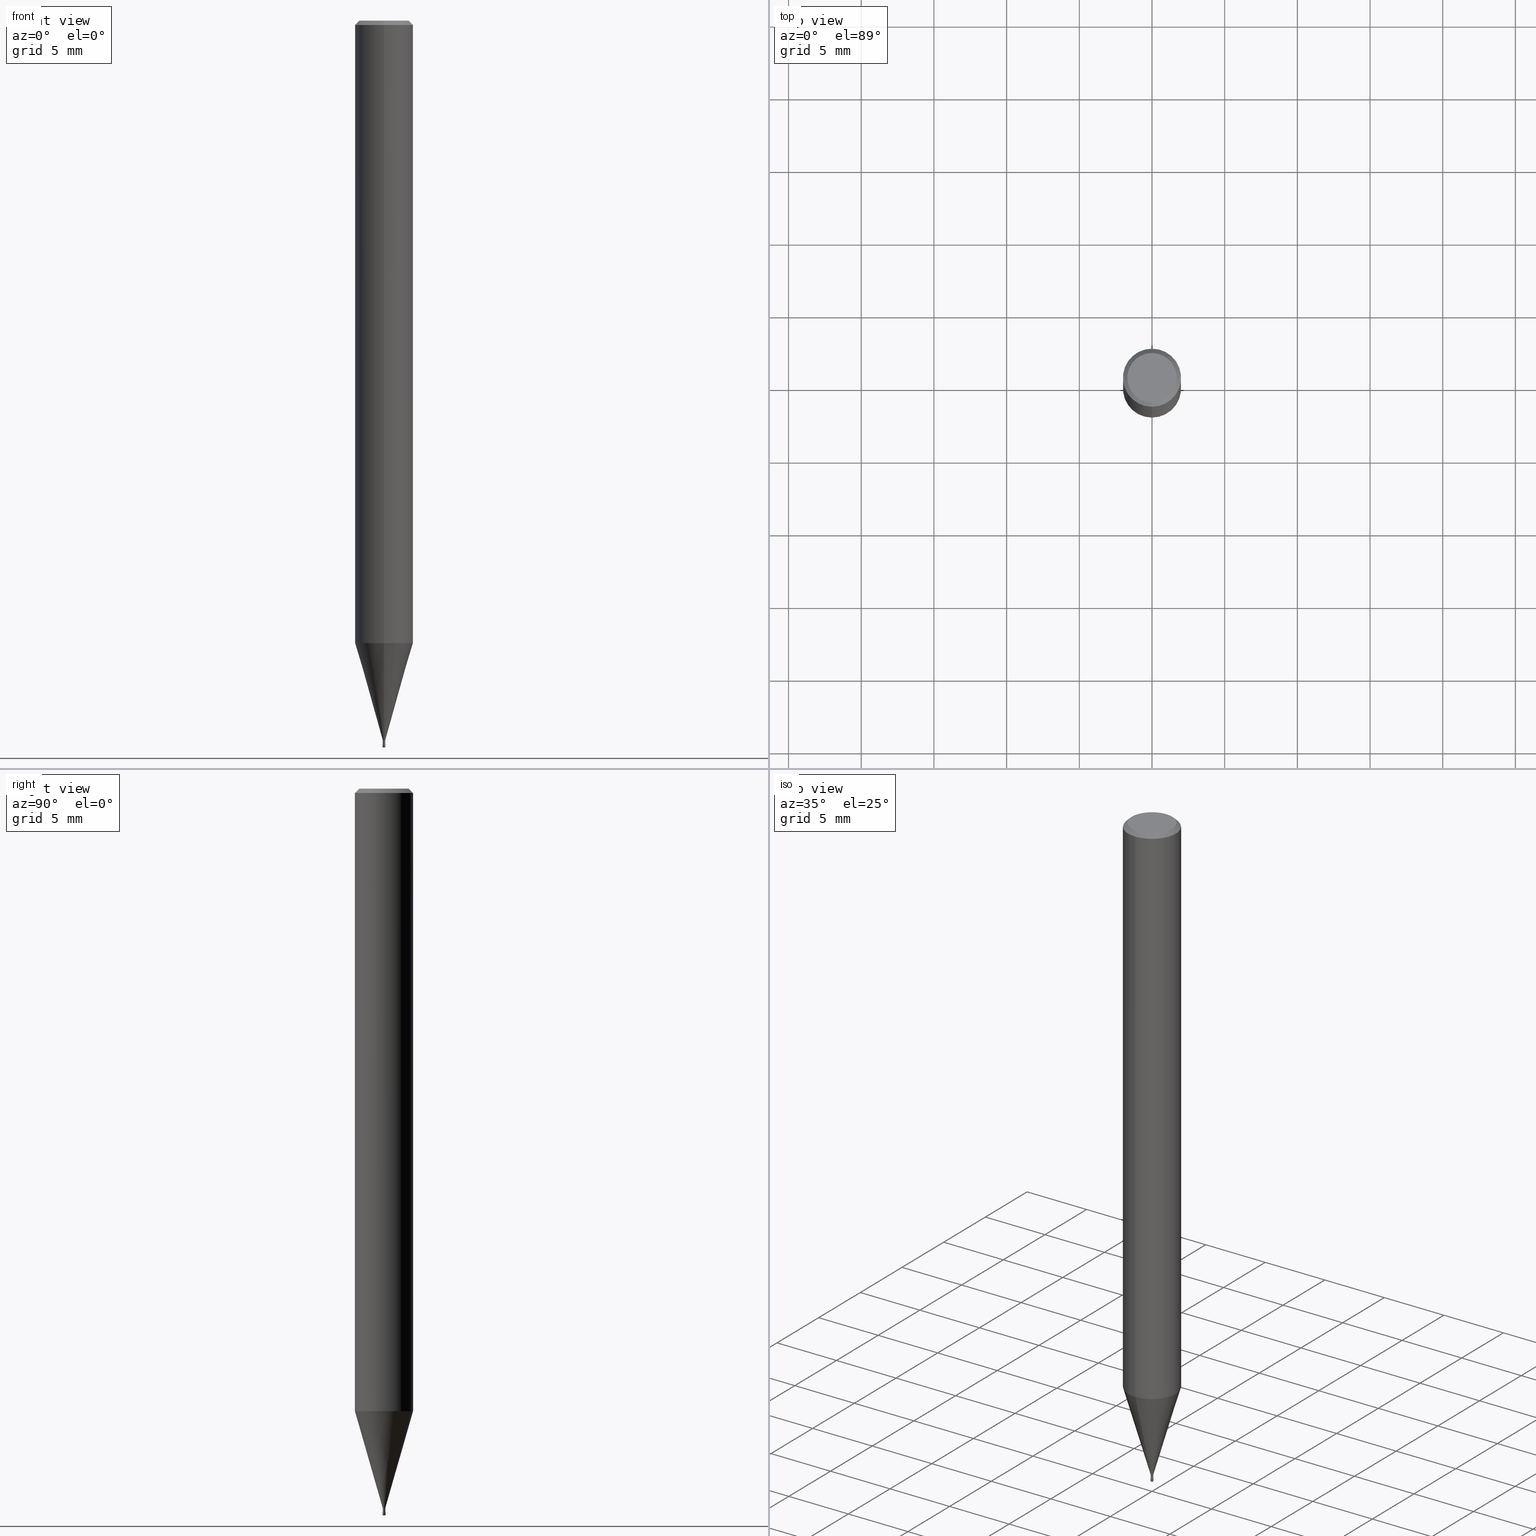
[diagram: canonical four-view strip — front | top / right | iso, engineering-drawing reading convention]
A machine part, canonical four-view strip (front | top / right | iso — engineering-drawing reading convention). The complete STEP part file that produces these views, byte-faithful:
ISO-10303-21;
HEADER;
FILE_DESCRIPTION(('no description'),'unknown implementation level');
FILE_NAME('HLRS2002-005-005E-Huellk.stp','  ',('CIMSOURCE GmbH'),('CADClick - KiM GmbH - www.kimweb.de'),'unknown preprocess','ACIS','unknown authorization');
FILE_SCHEMA(('automotive_design'));
ENDSEC;
DATA;
#1=MECHANICAL_DESIGN_GEOMETRIC_PRESENTATION_REPRESENTATION(' ',(#14,#15,#16,#17,#18,#19,#20,#21,#22,#23,#24,#25,#26,#27,#28,#29,#30,#31,#32,#33,#34,#35,#36,#37,#38,#39,#40,#41,#42,#43,#44,#45,#46,#47,#48,#49,#50,#51,#52,#53,#54,#55,#56,#57,#58,#59,#60,#61,#62,#63,#64,#65,#66,#67,#68,#69,#70,#71,#72,#73,#74,#75,#76,#77,#78,#79,#80),#10);
#2=PRODUCT_DEFINITION_CONTEXT('',#81,'design');
#3=APPLICATION_PROTOCOL_DEFINITION('INTERNATIONAL STANDARD','automotive_design',1994,#81);
#4=PRODUCT_CATEGORY_RELATIONSHIP('NONE','NONE',#82,#83);
#5=SHAPE_DEFINITION_REPRESENTATION(#84,#85);
#6=PRODUCT_DEFINITION_CONTEXT('',#86,'design');
#7=APPLICATION_PROTOCOL_DEFINITION('INTERNATIONAL STANDARD','automotive_design',1994,#86);
#8=PRODUCT_CATEGORY_RELATIONSHIP('NONE','NONE',#87,#88);
#9=SHAPE_DEFINITION_REPRESENTATION(#89,#90);
#10= (GEOMETRIC_REPRESENTATION_CONTEXT(3)GLOBAL_UNCERTAINTY_ASSIGNED_CONTEXT((#93))GLOBAL_UNIT_ASSIGNED_CONTEXT((#95,#96,#97))REPRESENTATION_CONTEXT('NONE','WORKSPACE'));
#14=STYLED_ITEM('',(#99),#100);
#15=STYLED_ITEM('',(#101),#102);
#16=STYLED_ITEM('',(#103),#104);
#17=STYLED_ITEM('',(#105),#106);
#18=STYLED_ITEM('',(#107),#108);
#19=STYLED_ITEM('',(#109),#110);
#20=STYLED_ITEM('',(#111),#112);
#21=STYLED_ITEM('',(#113),#114);
#22=STYLED_ITEM('',(#115),#116);
#23=STYLED_ITEM('',(#117),#118);
#24=STYLED_ITEM('',(#119),#120);
#25=STYLED_ITEM('',(#121),#122);
#26=STYLED_ITEM('',(#123),#124);
#27=STYLED_ITEM('',(#125),#126);
#28=STYLED_ITEM('',(#127),#128);
#29=STYLED_ITEM('',(#129),#130);
#30=STYLED_ITEM('',(#131),#132);
#31=STYLED_ITEM('',(#133),#134);
#32=STYLED_ITEM('',(#135),#136);
#33=STYLED_ITEM('',(#137),#138);
#34=STYLED_ITEM('',(#139),#140);
#35=STYLED_ITEM('',(#141),#142);
#36=STYLED_ITEM('',(#143),#144);
#37=STYLED_ITEM('',(#145),#146);
#38=STYLED_ITEM('',(#147),#148);
#39=STYLED_ITEM('',(#149),#150);
#40=STYLED_ITEM('',(#151),#152);
#41=STYLED_ITEM('',(#153),#154);
#42=STYLED_ITEM('',(#155),#156);
#43=STYLED_ITEM('',(#157),#158);
#44=STYLED_ITEM('',(#159),#160);
#45=STYLED_ITEM('',(#161),#162);
#46=STYLED_ITEM('',(#163),#164);
#47=STYLED_ITEM('',(#165),#166);
#48=STYLED_ITEM('',(#167),#168);
#49=STYLED_ITEM('',(#169),#170);
#50=STYLED_ITEM('',(#171),#172);
#51=STYLED_ITEM('',(#173),#174);
#52=STYLED_ITEM('',(#175),#176);
#53=STYLED_ITEM('',(#177),#178);
#54=STYLED_ITEM('',(#179),#180);
#55=STYLED_ITEM('',(#181),#182);
#56=STYLED_ITEM('',(#183),#184);
#57=STYLED_ITEM('',(#185),#186);
#58=STYLED_ITEM('',(#187),#188);
#59=STYLED_ITEM('',(#189),#190);
#60=STYLED_ITEM('',(#191),#192);
#61=STYLED_ITEM('',(#193),#194);
#62=STYLED_ITEM('',(#195),#196);
#63=STYLED_ITEM('',(#197),#198);
#64=STYLED_ITEM('',(#199),#200);
#65=STYLED_ITEM('',(#201),#202);
#66=STYLED_ITEM('',(#203),#204);
#67=STYLED_ITEM('',(#205),#206);
#68=STYLED_ITEM('',(#207),#208);
#69=STYLED_ITEM('',(#209),#210);
#70=STYLED_ITEM('',(#211),#212);
#71=STYLED_ITEM('',(#213),#214);
#72=STYLED_ITEM('',(#215),#216);
#73=STYLED_ITEM('',(#217),#218);
#74=STYLED_ITEM('',(#219),#220);
#75=STYLED_ITEM('',(#221),#222);
#76=STYLED_ITEM('',(#223),#224);
#77=STYLED_ITEM('',(#225),#226);
#78=STYLED_ITEM('',(#227),#228);
#79=STYLED_ITEM('',(#229),#230);
#80=STYLED_ITEM('',(#231),#232);
#81=APPLICATION_CONTEXT(' ');
#82=PRODUCT_CATEGORY('part','NONE');
#83=PRODUCT_RELATED_PRODUCT_CATEGORY('detail',' ',(#233));
#84=PRODUCT_DEFINITION_SHAPE('NONE','NONE',#234);
#85=ADVANCED_BREP_SHAPE_REPRESENTATION('1',(#202,#235),#10);
#86=APPLICATION_CONTEXT(' ');
#87=PRODUCT_CATEGORY('part','NONE');
#88=PRODUCT_RELATED_PRODUCT_CATEGORY('detail',' ',(#236));
#89=PRODUCT_DEFINITION_SHAPE('NONE','NONE',#237);
#90=ADVANCED_BREP_SHAPE_REPRESENTATION('2',(#174,#238),#10);
#93=UNCERTAINTY_MEASURE_WITH_UNIT(LENGTH_MEASURE(1.0E-006),#95,'','');
#95= (CONVERSION_BASED_UNIT('MILLIMETRE',#241)LENGTH_UNIT()NAMED_UNIT(#244));
#96= (NAMED_UNIT(#246)PLANE_ANGLE_UNIT()SI_UNIT($,.RADIAN.));
#97= (NAMED_UNIT(#246)SOLID_ANGLE_UNIT()SI_UNIT($,.STERADIAN.));
#99=PRESENTATION_STYLE_ASSIGNMENT((#252));
#100=EDGE_CURVE('',#150,#106,#253,.T.);
#101=PRESENTATION_STYLE_ASSIGNMENT((#254));
#102=ADVANCED_FACE('',(#255),#256,.T.);
#103=PRESENTATION_STYLE_ASSIGNMENT((#257));
#104=EDGE_CURVE('',#206,#162,#258,.T.);
#105=PRESENTATION_STYLE_ASSIGNMENT((#259));
#106=VERTEX_POINT('',#260);
#107=PRESENTATION_STYLE_ASSIGNMENT((#261));
#108=EDGE_CURVE('',#160,#150,#262,.T.);
#109=PRESENTATION_STYLE_ASSIGNMENT((#263));
#110=ADVANCED_FACE('',(#264),#265,.T.);
#111=PRESENTATION_STYLE_ASSIGNMENT((#266));
#112=VERTEX_POINT('',#267);
#113=PRESENTATION_STYLE_ASSIGNMENT((#268));
#114=ADVANCED_FACE('',(#269),#270,.T.);
#115=PRESENTATION_STYLE_ASSIGNMENT((#271));
#116=EDGE_CURVE('',#166,#144,#272,.T.);
#117=PRESENTATION_STYLE_ASSIGNMENT((#273));
#118=EDGE_CURVE('',#144,#216,#274,.T.);
#119=PRESENTATION_STYLE_ASSIGNMENT((#275));
#120=ADVANCED_FACE('',(#276),#277,.T.);
#121=PRESENTATION_STYLE_ASSIGNMENT((#278));
#122=EDGE_CURVE('',#144,#166,#279,.T.);
#123=PRESENTATION_STYLE_ASSIGNMENT((#280));
#124=VERTEX_POINT('',#281);
#125=PRESENTATION_STYLE_ASSIGNMENT((#282));
#126=EDGE_CURVE('',#194,#176,#283,.T.);
#127=PRESENTATION_STYLE_ASSIGNMENT((#284));
#128=ADVANCED_FACE('',(#285),#286,.T.);
#129=PRESENTATION_STYLE_ASSIGNMENT((#287));
#130=ADVANCED_FACE('',(#288),#289,.T.);
#131=PRESENTATION_STYLE_ASSIGNMENT((#290));
#132=EDGE_CURVE('',#184,#124,#291,.T.);
#133=PRESENTATION_STYLE_ASSIGNMENT((#292));
#134=EDGE_CURVE('',#112,#204,#293,.T.);
#135=PRESENTATION_STYLE_ASSIGNMENT((#294));
#136=EDGE_CURVE('',#216,#162,#295,.T.);
#137=PRESENTATION_STYLE_ASSIGNMENT((#296));
#138=ADVANCED_FACE('',(#297),#298,.T.);
#139=PRESENTATION_STYLE_ASSIGNMENT((#299));
#140=EDGE_CURVE('',#218,#160,#300,.T.);
#141=PRESENTATION_STYLE_ASSIGNMENT((#301));
#142=EDGE_CURVE('',#124,#184,#302,.T.);
#143=PRESENTATION_STYLE_ASSIGNMENT((#303));
#144=VERTEX_POINT('',#304);
#145=PRESENTATION_STYLE_ASSIGNMENT((#305));
#146=EDGE_CURVE('',#218,#112,#306,.T.);
#147=PRESENTATION_STYLE_ASSIGNMENT((#307));
#148=ADVANCED_FACE('',(#308,#309),#310,.T.);
#149=PRESENTATION_STYLE_ASSIGNMENT((#311));
#150=VERTEX_POINT('',#312);
#151=PRESENTATION_STYLE_ASSIGNMENT((#313));
#152=ADVANCED_FACE('',(#314),#315,.T.);
#153=PRESENTATION_STYLE_ASSIGNMENT((#316));
#154=EDGE_CURVE('',#214,#190,#317,.T.);
#155=PRESENTATION_STYLE_ASSIGNMENT((#318));
#156=EDGE_CURVE('',#168,#216,#319,.T.);
#157=PRESENTATION_STYLE_ASSIGNMENT((#320));
#158=ADVANCED_FACE('',(#321),#322,.T.);
#159=PRESENTATION_STYLE_ASSIGNMENT((#323));
#160=VERTEX_POINT('',#324);
#161=PRESENTATION_STYLE_ASSIGNMENT((#325));
#162=VERTEX_POINT('',#326);
#163=PRESENTATION_STYLE_ASSIGNMENT((#327));
#164=EDGE_CURVE('',#218,#106,#328,.T.);
#165=PRESENTATION_STYLE_ASSIGNMENT((#329));
#166=VERTEX_POINT('',#330);
#167=PRESENTATION_STYLE_ASSIGNMENT((#331));
#168=VERTEX_POINT('',#332);
#169=PRESENTATION_STYLE_ASSIGNMENT((#333));
#170=EDGE_CURVE('',#150,#160,#334,.T.);
#171=PRESENTATION_STYLE_ASSIGNMENT((#335));
#172=EDGE_CURVE('',#204,#112,#336,.T.);
#173=PRESENTATION_STYLE_ASSIGNMENT((#337));
#174=MANIFOLD_SOLID_BREP('2',#338);
#175=PRESENTATION_STYLE_ASSIGNMENT((#339));
#176=VERTEX_POINT('',#340);
#177=PRESENTATION_STYLE_ASSIGNMENT((#341));
#178=ADVANCED_FACE('',(#342),#343,.T.);
#179=PRESENTATION_STYLE_ASSIGNMENT((#344));
#180=EDGE_CURVE('',#124,#176,#345,.T.);
#181=PRESENTATION_STYLE_ASSIGNMENT((#346));
#182=ADVANCED_FACE('',(#347),#348,.T.);
#183=PRESENTATION_STYLE_ASSIGNMENT((#349));
#184=VERTEX_POINT('',#350);
#185=PRESENTATION_STYLE_ASSIGNMENT((#351));
#186=EDGE_CURVE('',#162,#206,#352,.T.);
#187=PRESENTATION_STYLE_ASSIGNMENT((#353));
#188=EDGE_CURVE('',#206,#168,#354,.T.);
#189=PRESENTATION_STYLE_ASSIGNMENT((#355));
#190=VERTEX_POINT('',#356);
#191=PRESENTATION_STYLE_ASSIGNMENT((#357));
#192=ADVANCED_FACE('',(#358),#359,.T.);
#193=PRESENTATION_STYLE_ASSIGNMENT((#360));
#194=VERTEX_POINT('',#361);
#195=PRESENTATION_STYLE_ASSIGNMENT((#362));
#196=EDGE_CURVE('',#106,#218,#363,.T.);
#197=PRESENTATION_STYLE_ASSIGNMENT((#364));
#198=EDGE_CURVE('',#190,#214,#365,.T.);
#199=PRESENTATION_STYLE_ASSIGNMENT((#366));
#200=ADVANCED_FACE('',(#367),#368,.T.);
#201=PRESENTATION_STYLE_ASSIGNMENT((#369));
#202=MANIFOLD_SOLID_BREP('1',#370);
#203=PRESENTATION_STYLE_ASSIGNMENT((#371));
#204=VERTEX_POINT('',#372);
#205=PRESENTATION_STYLE_ASSIGNMENT((#373));
#206=VERTEX_POINT('',#374);
#207=PRESENTATION_STYLE_ASSIGNMENT((#375));
#208=ADVANCED_FACE('',(#376),#377,.T.);
#209=PRESENTATION_STYLE_ASSIGNMENT((#378));
#210=EDGE_CURVE('',#216,#168,#379,.T.);
#211=PRESENTATION_STYLE_ASSIGNMENT((#380));
#212=ADVANCED_FACE('',(#381),#382,.T.);
#213=PRESENTATION_STYLE_ASSIGNMENT((#383));
#214=VERTEX_POINT('',#384);
#215=PRESENTATION_STYLE_ASSIGNMENT((#385));
#216=VERTEX_POINT('',#386);
#217=PRESENTATION_STYLE_ASSIGNMENT((#387));
#218=VERTEX_POINT('',#388);
#219=PRESENTATION_STYLE_ASSIGNMENT((#389));
#220=EDGE_CURVE('',#184,#214,#390,.T.);
#221=PRESENTATION_STYLE_ASSIGNMENT((#391));
#222=EDGE_CURVE('',#176,#194,#392,.T.);
#223=PRESENTATION_STYLE_ASSIGNMENT((#393));
#224=EDGE_CURVE('',#204,#106,#394,.T.);
#225=PRESENTATION_STYLE_ASSIGNMENT((#395));
#226=EDGE_CURVE('',#190,#124,#396,.T.);
#227=PRESENTATION_STYLE_ASSIGNMENT((#397));
#228=EDGE_CURVE('',#194,#184,#398,.T.);
#229=PRESENTATION_STYLE_ASSIGNMENT((#399));
#230=ADVANCED_FACE('',(#400),#401,.T.);
#231=PRESENTATION_STYLE_ASSIGNMENT((#402));
#232=EDGE_CURVE('',#168,#166,#403,.T.);
#233=PRODUCT('1','1','PART-1-DESC',(#404));
#234=PRODUCT_DEFINITION('NONE','NONE',#405,#2);
#235=AXIS2_PLACEMENT_3D('',#406,#407,#408);
#236=PRODUCT('2','2','PART-2-DESC',(#409));
#237=PRODUCT_DEFINITION('NONE','NONE',#410,#6);
#238=AXIS2_PLACEMENT_3D('',#411,#412,#413);
#241=LENGTH_MEASURE_WITH_UNIT(LENGTH_MEASURE(1.0),#414);
#244=DIMENSIONAL_EXPONENTS(1.0,0.0,0.0,0.0,0.0,0.0,0.0);
#246=DIMENSIONAL_EXPONENTS(0.0,0.0,0.0,0.0,0.0,0.0,0.0);
#252=CURVE_STYLE('',#415,POSITIVE_LENGTH_MEASURE(1.0E-006),#416);
#253=LINE('',#417,#418);
#254=SURFACE_STYLE_USAGE(.BOTH.,#419);
#255=FACE_OUTER_BOUND('',#420,.T.);
#256=PLANE('',#421);
#257=CURVE_STYLE('',#422,POSITIVE_LENGTH_MEASURE(1.0E-006),#423);
#258=CIRCLE('',#424,2.0);
#259=POINT_STYLE(' ',#425,POSITIVE_LENGTH_MEASURE(1.0E-006),#426);
#260=CARTESIAN_POINT('',(0.0,0.1,-49.95));
#261=CURVE_STYLE('',#427,POSITIVE_LENGTH_MEASURE(1.0E-006),#428);
#262=CIRCLE('',#429,0.0999);
#263=SURFACE_STYLE_USAGE(.BOTH.,#430);
#264=FACE_OUTER_BOUND('',#431,.T.);
#265=CONICAL_SURFACE('',#432,0.09995,0.00066666656790128);
#266=POINT_STYLE(' ',#433,POSITIVE_LENGTH_MEASURE(1.0E-006),#434);
#267=CARTESIAN_POINT('',(6.12303176911189E-018,-0.05,-50.0));
#268=SURFACE_STYLE_USAGE(.BOTH.,#435);
#269=FACE_OUTER_BOUND('',#436,.T.);
#270=TOROIDAL_SURFACE('',#437,0.0499999999999999,0.0500000000000001);
#271=CURVE_STYLE('',#438,POSITIVE_LENGTH_MEASURE(1.0E-006),#439);
#272=CIRCLE('',#440,1.7);
#273=CURVE_STYLE('',#441,POSITIVE_LENGTH_MEASURE(1.0E-006),#442);
#274=LINE('',#443,#444);
#275=SURFACE_STYLE_USAGE(.BOTH.,#445);
#276=FACE_OUTER_BOUND('',#446,.T.);
#277=PLANE('',#447);
#278=CURVE_STYLE('',#448,POSITIVE_LENGTH_MEASURE(1.0E-006),#449);
#279=CIRCLE('',#450,1.7);
#280=POINT_STYLE(' ',#451,POSITIVE_LENGTH_MEASURE(1.0E-006),#452);
#281=CARTESIAN_POINT('',(1.04030309757211E-017,-0.08495,-49.5));
#282=CURVE_STYLE('',#453,POSITIVE_LENGTH_MEASURE(1.0E-006),#454);
#283=CIRCLE('',#455,1.99995);
#284=SURFACE_STYLE_USAGE(.BOTH.,#456);
#285=FACE_OUTER_BOUND('',#457,.T.);
#286=PLANE('',#458);
#287=SURFACE_STYLE_USAGE(.BOTH.,#459);
#288=FACE_OUTER_BOUND('',#460,.T.);
#289=CYLINDRICAL_SURFACE('',#461,0.08495);
#290=CURVE_STYLE('',#462,POSITIVE_LENGTH_MEASURE(1.0E-006),#463);
#291=CIRCLE('',#464,0.08495);
#292=CURVE_STYLE('',#465,POSITIVE_LENGTH_MEASURE(1.0E-006),#466);
#293=CIRCLE('',#467,0.05);
#294=CURVE_STYLE('',#468,POSITIVE_LENGTH_MEASURE(1.0E-006),#469);
#295=LINE('',#470,#471);
#296=SURFACE_STYLE_USAGE(.BOTH.,#472);
#297=FACE_OUTER_BOUND('',#473,.T.);
#298=TOROIDAL_SURFACE('',#474,0.0499999999999999,0.0500000000000001);
#299=CURVE_STYLE('',#475,POSITIVE_LENGTH_MEASURE(1.0E-006),#476);
#300=LINE('',#477,#478);
#301=CURVE_STYLE('',#479,POSITIVE_LENGTH_MEASURE(1.0E-006),#480);
#302=CIRCLE('',#481,0.08495);
#303=POINT_STYLE(' ',#482,POSITIVE_LENGTH_MEASURE(1.0E-006),#483);
#304=CARTESIAN_POINT('',(0.0,1.7,0.0));
#305=CURVE_STYLE('',#484,POSITIVE_LENGTH_MEASURE(1.0E-006),#485);
#306=CIRCLE('',#486,0.0500000000000001);
#307=SURFACE_STYLE_USAGE(.BOTH.,#487);
#308=FACE_OUTER_BOUND('',#488,.T.);
#309=FACE_BOUND('',#489,.T.);
#310=PLANE('',#490);
#311=POINT_STYLE(' ',#491,POSITIVE_LENGTH_MEASURE(1.0E-006),#492);
#312=CARTESIAN_POINT('',(0.0,0.0999,-49.8));
#313=SURFACE_STYLE_USAGE(.BOTH.,#493);
#314=FACE_OUTER_BOUND('',#494,.T.);
#315=CONICAL_SURFACE('',#495,1.04245,0.279268497676986);
#316=CURVE_STYLE('',#496,POSITIVE_LENGTH_MEASURE(1.0E-006),#497);
#317=CIRCLE('',#498,0.08495);
#318=CURVE_STYLE('',#499,POSITIVE_LENGTH_MEASURE(1.0E-006),#500);
#319=CIRCLE('',#501,2.0);
#320=SURFACE_STYLE_USAGE(.BOTH.,#502);
#321=FACE_OUTER_BOUND('',#503,.T.);
#322=CONICAL_SURFACE('',#504,0.09995,0.00066666656790128);
#323=POINT_STYLE(' ',#505,POSITIVE_LENGTH_MEASURE(1.0E-006),#506);
#324=CARTESIAN_POINT('',(1.22338174746855E-017,-0.0999,-49.8));
#325=POINT_STYLE(' ',#507,POSITIVE_LENGTH_MEASURE(1.0E-006),#508);
#326=CARTESIAN_POINT('',(0.0,2.0,-42.822));
#327=CURVE_STYLE('',#509,POSITIVE_LENGTH_MEASURE(1.0E-006),#510);
#328=CIRCLE('',#511,0.1);
#329=POINT_STYLE(' ',#512,POSITIVE_LENGTH_MEASURE(1.0E-006),#513);
#330=CARTESIAN_POINT('',(2.08183080149804E-016,-1.7,0.0));
#331=POINT_STYLE(' ',#514,POSITIVE_LENGTH_MEASURE(1.0E-006),#515);
#332=CARTESIAN_POINT('',(2.44921270764475E-016,-2.0,-0.299999999999997));
#333=CURVE_STYLE('',#516,POSITIVE_LENGTH_MEASURE(1.0E-006),#517);
#334=CIRCLE('',#518,0.0999);
#335=CURVE_STYLE('',#519,POSITIVE_LENGTH_MEASURE(1.0E-006),#520);
#336=CIRCLE('',#521,0.05);
#337=SURFACE_STYLE_USAGE(.BOTH.,#522);
#338=CLOSED_SHELL('',(#114,#158,#128,#110,#138,#120));
#339=POINT_STYLE(' ',#523,POSITIVE_LENGTH_MEASURE(1.0E-006),#524);
#340=CARTESIAN_POINT('',(2.44915147732706E-016,-1.99995,-42.822));
#341=SURFACE_STYLE_USAGE(.BOTH.,#525);
#342=FACE_OUTER_BOUND('',#526,.T.);
#343=CYLINDRICAL_SURFACE('',#527,0.08495);
#344=CURVE_STYLE('',#528,POSITIVE_LENGTH_MEASURE(1.0E-006),#529);
#345=LINE('',#530,#531);
#346=SURFACE_STYLE_USAGE(.BOTH.,#532);
#347=FACE_OUTER_BOUND('',#533,.T.);
#348=CONICAL_SURFACE('',#534,1.85,0.785398163397453);
#349=POINT_STYLE(' ',#535,POSITIVE_LENGTH_MEASURE(1.0E-006),#536);
#350=CARTESIAN_POINT('',(0.0,0.08495,-49.5));
#351=CURVE_STYLE('',#537,POSITIVE_LENGTH_MEASURE(1.0E-006),#538);
#352=CIRCLE('',#539,2.0);
#353=CURVE_STYLE('',#540,POSITIVE_LENGTH_MEASURE(1.0E-006),#541);
#354=LINE('',#542,#543);
#355=POINT_STYLE(' ',#544,POSITIVE_LENGTH_MEASURE(1.0E-006),#545);
#356=CARTESIAN_POINT('',(1.04030309757211E-017,-0.08495,-49.8));
#357=SURFACE_STYLE_USAGE(.BOTH.,#546);
#358=FACE_OUTER_BOUND('',#547,.T.);
#359=CYLINDRICAL_SURFACE('',#548,2.0);
#360=POINT_STYLE(' ',#549,POSITIVE_LENGTH_MEASURE(1.0E-006),#550);
#361=CARTESIAN_POINT('',(0.0,1.99995,-42.822));
#362=CURVE_STYLE('',#551,POSITIVE_LENGTH_MEASURE(1.0E-006),#552);
#363=CIRCLE('',#553,0.1);
#364=CURVE_STYLE('',#554,POSITIVE_LENGTH_MEASURE(1.0E-006),#555);
#365=CIRCLE('',#556,0.08495);
#366=SURFACE_STYLE_USAGE(.BOTH.,#557);
#367=FACE_OUTER_BOUND('',#558,.T.);
#368=CONICAL_SURFACE('',#559,1.85,0.785398163397453);
#369=SURFACE_STYLE_USAGE(.BOTH.,#560);
#370=CLOSED_SHELL('',(#178,#208,#212,#200,#148,#230,#182,#192,#152,#130,#102));
#371=POINT_STYLE(' ',#561,POSITIVE_LENGTH_MEASURE(1.0E-006),#562);
#372=CARTESIAN_POINT('',(0.0,0.05,-50.0));
#373=POINT_STYLE(' ',#563,POSITIVE_LENGTH_MEASURE(1.0E-006),#564);
#374=CARTESIAN_POINT('',(2.44921270764475E-016,-2.0,-42.822));
#375=SURFACE_STYLE_USAGE(.BOTH.,#565);
#376=FACE_OUTER_BOUND('',#566,.T.);
#377=CONICAL_SURFACE('',#567,1.04245,0.279268497676986);
#378=CURVE_STYLE('',#568,POSITIVE_LENGTH_MEASURE(1.0E-006),#569);
#379=CIRCLE('',#570,2.0);
#380=SURFACE_STYLE_USAGE(.BOTH.,#571);
#381=FACE_OUTER_BOUND('',#572,.T.);
#382=CYLINDRICAL_SURFACE('',#573,2.0);
#383=POINT_STYLE(' ',#574,POSITIVE_LENGTH_MEASURE(1.0E-006),#575);
#384=CARTESIAN_POINT('',(0.0,0.08495,-49.8));
#385=POINT_STYLE(' ',#576,POSITIVE_LENGTH_MEASURE(1.0E-006),#577);
#386=CARTESIAN_POINT('',(0.0,2.0,-0.299999999999997));
#387=POINT_STYLE(' ',#578,POSITIVE_LENGTH_MEASURE(1.0E-006),#579);
#388=CARTESIAN_POINT('',(1.22460635382238E-017,-0.1,-49.95));
#389=CURVE_STYLE('',#580,POSITIVE_LENGTH_MEASURE(1.0E-006),#581);
#390=LINE('',#582,#583);
#391=CURVE_STYLE('',#584,POSITIVE_LENGTH_MEASURE(1.0E-006),#585);
#392=CIRCLE('',#586,1.99995);
#393=CURVE_STYLE('',#587,POSITIVE_LENGTH_MEASURE(1.0E-006),#588);
#394=CIRCLE('',#589,0.0500000000000001);
#395=CURVE_STYLE('',#590,POSITIVE_LENGTH_MEASURE(1.0E-006),#591);
#396=LINE('',#592,#593);
#397=CURVE_STYLE('',#594,POSITIVE_LENGTH_MEASURE(1.0E-006),#595);
#398=LINE('',#596,#597);
#399=SURFACE_STYLE_USAGE(.BOTH.,#598);
#400=FACE_OUTER_BOUND('',#599,.T.);
#401=PLANE('',#600);
#402=CURVE_STYLE('',#601,POSITIVE_LENGTH_MEASURE(1.0E-006),#602);
#403=LINE('',#603,#604);
#404=PRODUCT_CONTEXT('',#81,'mechanical');
#405=PRODUCT_DEFINITION_FORMATION_WITH_SPECIFIED_SOURCE(' ','NONE',#233,.NOT_KNOWN.);
#406=CARTESIAN_POINT('',(0.0,0.0,0.0));
#407=DIRECTION('',(0.0,0.0,1.0));
#408=DIRECTION('',(1.0,0.0,0.0));
#409=PRODUCT_CONTEXT('',#86,'mechanical');
#410=PRODUCT_DEFINITION_FORMATION_WITH_SPECIFIED_SOURCE(' ','NONE',#236,.NOT_KNOWN.);
#411=CARTESIAN_POINT('',(0.0,0.0,0.0));
#412=DIRECTION('',(0.0,0.0,1.0));
#413=DIRECTION('',(1.0,0.0,0.0));
#414= (NAMED_UNIT(#244)LENGTH_UNIT()SI_UNIT(.MILLI.,.METRE.));
#415=DRAUGHTING_PRE_DEFINED_CURVE_FONT('continuous');
#416=COLOUR_RGB('',0.800000011920929,0.800000011920929,0.800000011920929);
#417=CARTESIAN_POINT('',(-1.22399405064547E-017,0.09995,-49.875));
#418=VECTOR('',#606,1.0);
#419=SURFACE_SIDE_STYLE('',(#607));
#420=EDGE_LOOP('',(#608,#609));
#421=AXIS2_PLACEMENT_3D('',#610,#611,#612);
#422=DRAUGHTING_PRE_DEFINED_CURVE_FONT('continuous');
#423=COLOUR_RGB('',0.498039215803146,0.498039215803146,0.498039215803146);
#424=AXIS2_PLACEMENT_3D('',#613,#614,#615);
#425=PRE_DEFINED_MARKER('');
#426=COLOUR_RGB('',0.800000011920929,0.800000011920929,0.800000011920929);
#427=DRAUGHTING_PRE_DEFINED_CURVE_FONT('continuous');
#428=COLOUR_RGB('',0.800000011920929,0.800000011920929,0.800000011920929);
#429=AXIS2_PLACEMENT_3D('',#616,#617,#618);
#430=SURFACE_SIDE_STYLE('',(#619));
#431=EDGE_LOOP('',(#620,#621,#622,#623));
#432=AXIS2_PLACEMENT_3D('',#624,#625,#626);
#433=PRE_DEFINED_MARKER('');
#434=COLOUR_RGB('',0.800000011920929,0.800000011920929,0.800000011920929);
#435=SURFACE_SIDE_STYLE('',(#627));
#436=EDGE_LOOP('',(#628,#629,#630,#631));
#437=AXIS2_PLACEMENT_3D('',#632,#633,#634);
#438=DRAUGHTING_PRE_DEFINED_CURVE_FONT('continuous');
#439=COLOUR_RGB('',0.498039215803146,0.498039215803146,0.498039215803146);
#440=AXIS2_PLACEMENT_3D('',#635,#636,#637);
#441=DRAUGHTING_PRE_DEFINED_CURVE_FONT('continuous');
#442=COLOUR_RGB('',0.498039215803146,0.498039215803146,0.498039215803146);
#443=CARTESIAN_POINT('',(-2.2655217545714E-016,1.85,-0.149999999999999));
#444=VECTOR('',#638,1.0);
#445=SURFACE_SIDE_STYLE('',(#639));
#446=EDGE_LOOP('',(#640,#641));
#447=AXIS2_PLACEMENT_3D('',#642,#643,#644);
#448=DRAUGHTING_PRE_DEFINED_CURVE_FONT('continuous');
#449=COLOUR_RGB('',0.498039215803146,0.498039215803146,0.498039215803146);
#450=AXIS2_PLACEMENT_3D('',#645,#646,#647);
#451=PRE_DEFINED_MARKER('');
#452=COLOUR_RGB('',0.498039215803146,0.498039215803146,0.498039215803146);
#453=DRAUGHTING_PRE_DEFINED_CURVE_FONT('continuous');
#454=COLOUR_RGB('',0.498039215803146,0.498039215803146,0.498039215803146);
#455=AXIS2_PLACEMENT_3D('',#648,#649,#650);
#456=SURFACE_SIDE_STYLE('',(#651));
#457=EDGE_LOOP('',(#652,#653));
#458=AXIS2_PLACEMENT_3D('',#654,#655,#656);
#459=SURFACE_SIDE_STYLE('',(#657));
#460=EDGE_LOOP('',(#658,#659,#660,#661));
#461=AXIS2_PLACEMENT_3D('',#662,#663,#664);
#462=DRAUGHTING_PRE_DEFINED_CURVE_FONT('continuous');
#463=COLOUR_RGB('',0.498039215803146,0.498039215803146,0.498039215803146);
#464=AXIS2_PLACEMENT_3D('',#665,#666,#667);
#465=DRAUGHTING_PRE_DEFINED_CURVE_FONT('continuous');
#466=COLOUR_RGB('',0.800000011920929,0.800000011920929,0.800000011920929);
#467=AXIS2_PLACEMENT_3D('',#668,#669,#670);
#468=DRAUGHTING_PRE_DEFINED_CURVE_FONT('continuous');
#469=COLOUR_RGB('',0.498039215803146,0.498039215803146,0.498039215803146);
#470=CARTESIAN_POINT('',(-2.44921270764475E-016,2.0,-21.561));
#471=VECTOR('',#671,1.0);
#472=SURFACE_SIDE_STYLE('',(#672));
#473=EDGE_LOOP('',(#673,#674,#675,#676));
#474=AXIS2_PLACEMENT_3D('',#677,#678,#679);
#475=DRAUGHTING_PRE_DEFINED_CURVE_FONT('continuous');
#476=COLOUR_RGB('',0.800000011920929,0.800000011920929,0.800000011920929);
#477=CARTESIAN_POINT('',(1.22399405064547E-017,-0.09995,-49.875));
#478=VECTOR('',#680,1.0);
#479=DRAUGHTING_PRE_DEFINED_CURVE_FONT('continuous');
#480=COLOUR_RGB('',0.498039215803146,0.498039215803146,0.498039215803146);
#481=AXIS2_PLACEMENT_3D('',#681,#682,#683);
#482=PRE_DEFINED_MARKER('');
#483=COLOUR_RGB('',0.498039215803146,0.498039215803146,0.498039215803146);
#484=DRAUGHTING_PRE_DEFINED_CURVE_FONT('continuous');
#485=COLOUR_RGB('',0.800000011920929,0.800000011920929,0.800000011920929);
#486=AXIS2_PLACEMENT_3D('',#684,#685,#686);
#487=SURFACE_SIDE_STYLE('',(#687));
#488=EDGE_LOOP('',(#688,#689));
#489=EDGE_LOOP('',(#690,#691));
#490=AXIS2_PLACEMENT_3D('',#692,#693,#694);
#491=PRE_DEFINED_MARKER('');
#492=COLOUR_RGB('',0.800000011920929,0.800000011920929,0.800000011920929);
#493=SURFACE_SIDE_STYLE('',(#695));
#494=EDGE_LOOP('',(#696,#697,#698,#699));
#495=AXIS2_PLACEMENT_3D('',#700,#701,#702);
#496=DRAUGHTING_PRE_DEFINED_CURVE_FONT('continuous');
#497=COLOUR_RGB('',0.498039215803146,0.498039215803146,0.498039215803146);
#498=AXIS2_PLACEMENT_3D('',#703,#704,#705);
#499=DRAUGHTING_PRE_DEFINED_CURVE_FONT('continuous');
#500=COLOUR_RGB('',0.498039215803146,0.498039215803146,0.498039215803146);
#501=AXIS2_PLACEMENT_3D('',#706,#707,#708);
#502=SURFACE_SIDE_STYLE('',(#709));
#503=EDGE_LOOP('',(#710,#711,#712,#713));
#504=AXIS2_PLACEMENT_3D('',#714,#715,#716);
#505=PRE_DEFINED_MARKER('');
#506=COLOUR_RGB('',0.800000011920929,0.800000011920929,0.800000011920929);
#507=PRE_DEFINED_MARKER('');
#508=COLOUR_RGB('',0.498039215803146,0.498039215803146,0.498039215803146);
#509=DRAUGHTING_PRE_DEFINED_CURVE_FONT('continuous');
#510=COLOUR_RGB('',0.800000011920929,0.800000011920929,0.800000011920929);
#511=AXIS2_PLACEMENT_3D('',#717,#718,#719);
#512=PRE_DEFINED_MARKER('');
#513=COLOUR_RGB('',0.498039215803146,0.498039215803146,0.498039215803146);
#514=PRE_DEFINED_MARKER('');
#515=COLOUR_RGB('',0.498039215803146,0.498039215803146,0.498039215803146);
#516=DRAUGHTING_PRE_DEFINED_CURVE_FONT('continuous');
#517=COLOUR_RGB('',0.800000011920929,0.800000011920929,0.800000011920929);
#518=AXIS2_PLACEMENT_3D('',#720,#721,#722);
#519=DRAUGHTING_PRE_DEFINED_CURVE_FONT('continuous');
#520=COLOUR_RGB('',0.800000011920929,0.800000011920929,0.800000011920929);
#521=AXIS2_PLACEMENT_3D('',#723,#724,#725);
#522=SURFACE_SIDE_STYLE('',(#726));
#523=PRE_DEFINED_MARKER('');
#524=COLOUR_RGB('',0.498039215803146,0.498039215803146,0.498039215803146);
#525=SURFACE_SIDE_STYLE('',(#727));
#526=EDGE_LOOP('',(#728,#729,#730,#731));
#527=AXIS2_PLACEMENT_3D('',#732,#733,#734);
#528=DRAUGHTING_PRE_DEFINED_CURVE_FONT('continuous');
#529=COLOUR_RGB('',0.498039215803146,0.498039215803146,0.498039215803146);
#530=CARTESIAN_POINT('',(1.27659089354214E-016,-1.04245,-46.161));
#531=VECTOR('',#735,1.0);
#532=SURFACE_SIDE_STYLE('',(#736));
#533=EDGE_LOOP('',(#737,#738,#739,#740));
#534=AXIS2_PLACEMENT_3D('',#741,#742,#743);
#535=PRE_DEFINED_MARKER('');
#536=COLOUR_RGB('',0.498039215803146,0.498039215803146,0.498039215803146);
#537=DRAUGHTING_PRE_DEFINED_CURVE_FONT('continuous');
#538=COLOUR_RGB('',0.498039215803146,0.498039215803146,0.498039215803146);
#539=AXIS2_PLACEMENT_3D('',#744,#745,#746);
#540=DRAUGHTING_PRE_DEFINED_CURVE_FONT('continuous');
#541=COLOUR_RGB('',0.498039215803146,0.498039215803146,0.498039215803146);
#542=CARTESIAN_POINT('',(2.44921270764475E-016,-2.0,-21.561));
#543=VECTOR('',#747,1.0);
#544=PRE_DEFINED_MARKER('');
#545=COLOUR_RGB('',0.498039215803146,0.498039215803146,0.498039215803146);
#546=SURFACE_SIDE_STYLE('',(#748));
#547=EDGE_LOOP('',(#749,#750,#751,#752));
#548=AXIS2_PLACEMENT_3D('',#753,#754,#755);
#549=PRE_DEFINED_MARKER('');
#550=COLOUR_RGB('',0.498039215803146,0.498039215803146,0.498039215803146);
#551=DRAUGHTING_PRE_DEFINED_CURVE_FONT('continuous');
#552=COLOUR_RGB('',0.800000011920929,0.800000011920929,0.800000011920929);
#553=AXIS2_PLACEMENT_3D('',#756,#757,#758);
#554=DRAUGHTING_PRE_DEFINED_CURVE_FONT('continuous');
#555=COLOUR_RGB('',0.498039215803146,0.498039215803146,0.498039215803146);
#556=AXIS2_PLACEMENT_3D('',#759,#760,#761);
#557=SURFACE_SIDE_STYLE('',(#762));
#558=EDGE_LOOP('',(#763,#764,#765,#766));
#559=AXIS2_PLACEMENT_3D('',#767,#768,#769);
#560=SURFACE_SIDE_STYLE('',(#770));
#561=PRE_DEFINED_MARKER('');
#562=COLOUR_RGB('',0.800000011920929,0.800000011920929,0.800000011920929);
#563=PRE_DEFINED_MARKER('');
#564=COLOUR_RGB('',0.498039215803146,0.498039215803146,0.498039215803146);
#565=SURFACE_SIDE_STYLE('',(#771));
#566=EDGE_LOOP('',(#772,#773,#774,#775));
#567=AXIS2_PLACEMENT_3D('',#776,#777,#778);
#568=DRAUGHTING_PRE_DEFINED_CURVE_FONT('continuous');
#569=COLOUR_RGB('',0.498039215803146,0.498039215803146,0.498039215803146);
#570=AXIS2_PLACEMENT_3D('',#779,#780,#781);
#571=SURFACE_SIDE_STYLE('',(#782));
#572=EDGE_LOOP('',(#783,#784,#785,#786));
#573=AXIS2_PLACEMENT_3D('',#787,#788,#789);
#574=PRE_DEFINED_MARKER('');
#575=COLOUR_RGB('',0.498039215803146,0.498039215803146,0.498039215803146);
#576=PRE_DEFINED_MARKER('');
#577=COLOUR_RGB('',0.498039215803146,0.498039215803146,0.498039215803146);
#578=PRE_DEFINED_MARKER('');
#579=COLOUR_RGB('',0.800000011920929,0.800000011920929,0.800000011920929);
#580=DRAUGHTING_PRE_DEFINED_CURVE_FONT('continuous');
#581=COLOUR_RGB('',0.498039215803146,0.498039215803146,0.498039215803146);
#582=CARTESIAN_POINT('',(-1.04030309757211E-017,0.08495,-49.65));
#583=VECTOR('',#790,1.0);
#584=DRAUGHTING_PRE_DEFINED_CURVE_FONT('continuous');
#585=COLOUR_RGB('',0.498039215803146,0.498039215803146,0.498039215803146);
#586=AXIS2_PLACEMENT_3D('',#791,#792,#793);
#587=DRAUGHTING_PRE_DEFINED_CURVE_FONT('continuous');
#588=COLOUR_RGB('',0.800000011920929,0.800000011920929,0.800000011920929);
#589=AXIS2_PLACEMENT_3D('',#794,#795,#796);
#590=DRAUGHTING_PRE_DEFINED_CURVE_FONT('continuous');
#591=COLOUR_RGB('',0.498039215803146,0.498039215803146,0.498039215803146);
#592=CARTESIAN_POINT('',(1.04030309757211E-017,-0.08495,-49.65));
#593=VECTOR('',#797,1.0);
#594=DRAUGHTING_PRE_DEFINED_CURVE_FONT('continuous');
#595=COLOUR_RGB('',0.498039215803146,0.498039215803146,0.498039215803146);
#596=CARTESIAN_POINT('',(-1.27659089354214E-016,1.04245,-46.161));
#597=VECTOR('',#798,1.0);
#598=SURFACE_SIDE_STYLE('',(#799));
#599=EDGE_LOOP('',(#800,#801));
#600=AXIS2_PLACEMENT_3D('',#802,#803,#804);
#601=DRAUGHTING_PRE_DEFINED_CURVE_FONT('continuous');
#602=COLOUR_RGB('',0.498039215803146,0.498039215803146,0.498039215803146);
#603=CARTESIAN_POINT('',(2.2655217545714E-016,-1.85,-0.149999999999999));
#604=VECTOR('',#805,1.0);
#606=DIRECTION('',(-8.16404054458505E-020,0.000666666518518587,-0.999999777777852));
#607=SURFACE_STYLE_FILL_AREA(#806);
#608=ORIENTED_EDGE('',*,*,#154,.T.);
#609=ORIENTED_EDGE('',*,*,#198,.T.);
#610=CARTESIAN_POINT('',(0.0,0.042475,-49.8));
#611=DIRECTION('',(0.0,0.0,-1.0));
#612=DIRECTION('',(0.0,1.0,0.0));
#613=CARTESIAN_POINT('',(0.0,0.0,-42.822));
#614=DIRECTION('',(0.0,0.0,-1.0));
#615=DIRECTION('',(0.0,1.0,0.0));
#616=CARTESIAN_POINT('',(0.0,0.0,-49.8));
#617=DIRECTION('',(0.0,0.0,-1.0));
#618=DIRECTION('',(0.0,1.0,0.0));
#619=SURFACE_STYLE_FILL_AREA(#807);
#620=ORIENTED_EDGE('',*,*,#100,.T.);
#621=ORIENTED_EDGE('',*,*,#164,.F.);
#622=ORIENTED_EDGE('',*,*,#140,.T.);
#623=ORIENTED_EDGE('',*,*,#108,.T.);
#624=CARTESIAN_POINT('',(0.0,0.0,-49.875));
#625=DIRECTION('',(0.0,-0.0,-1.0));
#626=DIRECTION('',(0.0,1.0,0.0));
#627=SURFACE_STYLE_FILL_AREA(#808);
#628=ORIENTED_EDGE('',*,*,#146,.F.);
#629=ORIENTED_EDGE('',*,*,#164,.T.);
#630=ORIENTED_EDGE('',*,*,#224,.F.);
#631=ORIENTED_EDGE('',*,*,#134,.F.);
#632=CARTESIAN_POINT('',(0.0,0.0,-49.95));
#633=DIRECTION('',(0.0,0.0,-1.0));
#634=DIRECTION('',(0.0,-1.0,0.0));
#635=CARTESIAN_POINT('',(0.0,0.0,0.0));
#636=DIRECTION('',(0.0,0.0,-1.0));
#637=DIRECTION('',(0.0,1.0,0.0));
#638=DIRECTION('',(-8.6592745707194E-017,0.707106781186551,-0.707106781186544));
#639=SURFACE_STYLE_FILL_AREA(#809);
#640=ORIENTED_EDGE('',*,*,#172,.T.);
#641=ORIENTED_EDGE('',*,*,#134,.T.);
#642=CARTESIAN_POINT('',(0.0,0.025,-50.0));
#643=DIRECTION('',(0.0,0.0,-1.0));
#644=DIRECTION('',(0.0,1.0,0.0));
#645=CARTESIAN_POINT('',(0.0,0.0,0.0));
#646=DIRECTION('',(0.0,0.0,-1.0));
#647=DIRECTION('',(0.0,1.0,0.0));
#648=CARTESIAN_POINT('',(0.0,0.0,-42.822));
#649=DIRECTION('',(0.0,0.0,-1.0));
#650=DIRECTION('',(0.0,1.0,0.0));
#651=SURFACE_STYLE_FILL_AREA(#810);
#652=ORIENTED_EDGE('',*,*,#170,.F.);
#653=ORIENTED_EDGE('',*,*,#108,.F.);
#654=CARTESIAN_POINT('',(0.0,0.04995,-49.8));
#655=DIRECTION('',(-0.0,0.0,1.0));
#656=DIRECTION('',(0.0,-1.0,0.0));
#657=SURFACE_STYLE_FILL_AREA(#811);
#658=ORIENTED_EDGE('',*,*,#220,.T.);
#659=ORIENTED_EDGE('',*,*,#198,.F.);
#660=ORIENTED_EDGE('',*,*,#226,.T.);
#661=ORIENTED_EDGE('',*,*,#142,.T.);
#662=CARTESIAN_POINT('',(0.0,0.0,-49.65));
#663=DIRECTION('',(-0.0,-0.0,1.0));
#664=DIRECTION('',(0.0,1.0,0.0));
#665=CARTESIAN_POINT('',(0.0,0.0,-49.5));
#666=DIRECTION('',(0.0,0.0,-1.0));
#667=DIRECTION('',(0.0,1.0,0.0));
#668=CARTESIAN_POINT('',(0.0,0.0,-50.0));
#669=DIRECTION('',(0.0,0.0,-1.0));
#670=DIRECTION('',(0.0,1.0,0.0));
#671=DIRECTION('',(0.0,0.0,-1.0));
#672=SURFACE_STYLE_FILL_AREA(#812);
#673=ORIENTED_EDGE('',*,*,#146,.T.);
#674=ORIENTED_EDGE('',*,*,#172,.F.);
#675=ORIENTED_EDGE('',*,*,#224,.T.);
#676=ORIENTED_EDGE('',*,*,#196,.T.);
#677=CARTESIAN_POINT('',(0.0,0.0,-49.95));
#678=DIRECTION('',(0.0,0.0,-1.0));
#679=DIRECTION('',(0.0,-1.0,0.0));
#680=DIRECTION('',(-8.16404054458505E-020,0.000666666518518587,0.999999777777852));
#681=CARTESIAN_POINT('',(0.0,0.0,-49.5));
#682=DIRECTION('',(0.0,0.0,-1.0));
#683=DIRECTION('',(0.0,1.0,0.0));
#684=CARTESIAN_POINT('',(6.12303176911187E-018,-0.0499999999999999,-49.95));
#685=DIRECTION('',(1.0,1.22460635382238E-016,0.0));
#686=DIRECTION('',(1.22460635382238E-016,-1.0,-0.0));
#687=SURFACE_STYLE_FILL_AREA(#813);
#688=ORIENTED_EDGE('',*,*,#186,.T.);
#689=ORIENTED_EDGE('',*,*,#104,.T.);
#690=ORIENTED_EDGE('',*,*,#126,.F.);
#691=ORIENTED_EDGE('',*,*,#222,.F.);
#692=CARTESIAN_POINT('',(0.0,1.0,-42.822));
#693=DIRECTION('',(0.0,0.0,-1.0));
#694=DIRECTION('',(0.0,1.0,0.0));
#695=SURFACE_STYLE_FILL_AREA(#814);
#696=ORIENTED_EDGE('',*,*,#228,.T.);
#697=ORIENTED_EDGE('',*,*,#142,.F.);
#698=ORIENTED_EDGE('',*,*,#180,.T.);
#699=ORIENTED_EDGE('',*,*,#222,.T.);
#700=CARTESIAN_POINT('',(0.0,0.0,-46.161));
#701=DIRECTION('',(-0.0,-0.0,1.0));
#702=DIRECTION('',(0.0,1.0,0.0));
#703=CARTESIAN_POINT('',(0.0,0.0,-49.8));
#704=DIRECTION('',(0.0,0.0,-1.0));
#705=DIRECTION('',(0.0,1.0,0.0));
#706=CARTESIAN_POINT('',(0.0,0.0,-0.299999999999997));
#707=DIRECTION('',(0.0,0.0,-1.0));
#708=DIRECTION('',(0.0,1.0,0.0));
#709=SURFACE_STYLE_FILL_AREA(#815);
#710=ORIENTED_EDGE('',*,*,#100,.F.);
#711=ORIENTED_EDGE('',*,*,#170,.T.);
#712=ORIENTED_EDGE('',*,*,#140,.F.);
#713=ORIENTED_EDGE('',*,*,#196,.F.);
#714=CARTESIAN_POINT('',(0.0,0.0,-49.875));
#715=DIRECTION('',(0.0,-0.0,-1.0));
#716=DIRECTION('',(0.0,1.0,0.0));
#717=CARTESIAN_POINT('',(0.0,0.0,-49.95));
#718=DIRECTION('',(0.0,0.0,-1.0));
#719=DIRECTION('',(0.0,1.0,0.0));
#720=CARTESIAN_POINT('',(0.0,0.0,-49.8));
#721=DIRECTION('',(0.0,0.0,-1.0));
#722=DIRECTION('',(0.0,1.0,0.0));
#723=CARTESIAN_POINT('',(0.0,0.0,-50.0));
#724=DIRECTION('',(0.0,0.0,-1.0));
#725=DIRECTION('',(0.0,1.0,0.0));
#726=SURFACE_STYLE_FILL_AREA(#816);
#727=SURFACE_STYLE_FILL_AREA(#817);
#728=ORIENTED_EDGE('',*,*,#220,.F.);
#729=ORIENTED_EDGE('',*,*,#132,.T.);
#730=ORIENTED_EDGE('',*,*,#226,.F.);
#731=ORIENTED_EDGE('',*,*,#154,.F.);
#732=CARTESIAN_POINT('',(0.0,0.0,-49.65));
#733=DIRECTION('',(-0.0,-0.0,1.0));
#734=DIRECTION('',(0.0,1.0,0.0));
#735=DIRECTION('',(3.37565876916665E-017,-0.275652560402792,0.961257335963365));
#736=SURFACE_STYLE_FILL_AREA(#818);
#737=ORIENTED_EDGE('',*,*,#118,.T.);
#738=ORIENTED_EDGE('',*,*,#156,.F.);
#739=ORIENTED_EDGE('',*,*,#232,.T.);
#740=ORIENTED_EDGE('',*,*,#116,.T.);
#741=CARTESIAN_POINT('',(0.0,0.0,-0.149999999999999));
#742=DIRECTION('',(0.0,-0.0,-1.0));
#743=DIRECTION('',(0.0,1.0,0.0));
#744=CARTESIAN_POINT('',(0.0,0.0,-42.822));
#745=DIRECTION('',(0.0,0.0,-1.0));
#746=DIRECTION('',(0.0,1.0,0.0));
#747=DIRECTION('',(-0.0,-0.0,1.0));
#748=SURFACE_STYLE_FILL_AREA(#819);
#749=ORIENTED_EDGE('',*,*,#136,.T.);
#750=ORIENTED_EDGE('',*,*,#104,.F.);
#751=ORIENTED_EDGE('',*,*,#188,.T.);
#752=ORIENTED_EDGE('',*,*,#156,.T.);
#753=CARTESIAN_POINT('',(0.0,0.0,-21.561));
#754=DIRECTION('',(-0.0,-0.0,1.0));
#755=DIRECTION('',(0.0,1.0,0.0));
#756=CARTESIAN_POINT('',(0.0,0.0,-49.95));
#757=DIRECTION('',(0.0,0.0,-1.0));
#758=DIRECTION('',(0.0,1.0,0.0));
#759=CARTESIAN_POINT('',(0.0,0.0,-49.8));
#760=DIRECTION('',(0.0,0.0,-1.0));
#761=DIRECTION('',(0.0,1.0,0.0));
#762=SURFACE_STYLE_FILL_AREA(#820);
#763=ORIENTED_EDGE('',*,*,#118,.F.);
#764=ORIENTED_EDGE('',*,*,#122,.T.);
#765=ORIENTED_EDGE('',*,*,#232,.F.);
#766=ORIENTED_EDGE('',*,*,#210,.F.);
#767=CARTESIAN_POINT('',(0.0,0.0,-0.149999999999999));
#768=DIRECTION('',(0.0,-0.0,-1.0));
#769=DIRECTION('',(0.0,1.0,0.0));
#770=SURFACE_STYLE_FILL_AREA(#821);
#771=SURFACE_STYLE_FILL_AREA(#822);
#772=ORIENTED_EDGE('',*,*,#228,.F.);
#773=ORIENTED_EDGE('',*,*,#126,.T.);
#774=ORIENTED_EDGE('',*,*,#180,.F.);
#775=ORIENTED_EDGE('',*,*,#132,.F.);
#776=CARTESIAN_POINT('',(0.0,0.0,-46.161));
#777=DIRECTION('',(-0.0,-0.0,1.0));
#778=DIRECTION('',(0.0,1.0,0.0));
#779=CARTESIAN_POINT('',(0.0,0.0,-0.299999999999997));
#780=DIRECTION('',(0.0,0.0,-1.0));
#781=DIRECTION('',(0.0,1.0,0.0));
#782=SURFACE_STYLE_FILL_AREA(#823);
#783=ORIENTED_EDGE('',*,*,#136,.F.);
#784=ORIENTED_EDGE('',*,*,#210,.T.);
#785=ORIENTED_EDGE('',*,*,#188,.F.);
#786=ORIENTED_EDGE('',*,*,#186,.F.);
#787=CARTESIAN_POINT('',(0.0,0.0,-21.561));
#788=DIRECTION('',(-0.0,-0.0,1.0));
#789=DIRECTION('',(0.0,1.0,0.0));
#790=DIRECTION('',(0.0,0.0,-1.0));
#791=CARTESIAN_POINT('',(0.0,0.0,-42.822));
#792=DIRECTION('',(0.0,0.0,-1.0));
#793=DIRECTION('',(0.0,1.0,0.0));
#794=CARTESIAN_POINT('',(-6.12303176911187E-018,0.0499999999999999,-49.95));
#795=DIRECTION('',(1.0,1.22460635382238E-016,0.0));
#796=DIRECTION('',(-1.22460635382238E-016,1.0,0.0));
#797=DIRECTION('',(-0.0,-0.0,1.0));
#798=DIRECTION('',(3.37565876916665E-017,-0.275652560402792,-0.961257335963365));
#799=SURFACE_STYLE_FILL_AREA(#824);
#800=ORIENTED_EDGE('',*,*,#122,.F.);
#801=ORIENTED_EDGE('',*,*,#116,.F.);
#802=CARTESIAN_POINT('',(0.0,0.85,0.0));
#803=DIRECTION('',(-0.0,0.0,1.0));
#804=DIRECTION('',(0.0,-1.0,0.0));
#805=DIRECTION('',(-8.6592745707194E-017,0.707106781186551,0.707106781186544));
#806=FILL_AREA_STYLE('',(#825));
#807=FILL_AREA_STYLE('',(#826));
#808=FILL_AREA_STYLE('',(#827));
#809=FILL_AREA_STYLE('',(#828));
#810=FILL_AREA_STYLE('',(#829));
#811=FILL_AREA_STYLE('',(#830));
#812=FILL_AREA_STYLE('',(#831));
#813=FILL_AREA_STYLE('',(#832));
#814=FILL_AREA_STYLE('',(#833));
#815=FILL_AREA_STYLE('',(#834));
#816=FILL_AREA_STYLE('',(#835));
#817=FILL_AREA_STYLE('',(#836));
#818=FILL_AREA_STYLE('',(#837));
#819=FILL_AREA_STYLE('',(#838));
#820=FILL_AREA_STYLE('',(#839));
#821=FILL_AREA_STYLE('',(#840));
#822=FILL_AREA_STYLE('',(#841));
#823=FILL_AREA_STYLE('',(#842));
#824=FILL_AREA_STYLE('',(#843));
#825=FILL_AREA_STYLE_COLOUR('',#844);
#826=FILL_AREA_STYLE_COLOUR('',#845);
#827=FILL_AREA_STYLE_COLOUR('',#846);
#828=FILL_AREA_STYLE_COLOUR('',#847);
#829=FILL_AREA_STYLE_COLOUR('',#848);
#830=FILL_AREA_STYLE_COLOUR('',#849);
#831=FILL_AREA_STYLE_COLOUR('',#850);
#832=FILL_AREA_STYLE_COLOUR('',#851);
#833=FILL_AREA_STYLE_COLOUR('',#852);
#834=FILL_AREA_STYLE_COLOUR('',#853);
#835=FILL_AREA_STYLE_COLOUR('',#854);
#836=FILL_AREA_STYLE_COLOUR('',#855);
#837=FILL_AREA_STYLE_COLOUR('',#856);
#838=FILL_AREA_STYLE_COLOUR('',#857);
#839=FILL_AREA_STYLE_COLOUR('',#858);
#840=FILL_AREA_STYLE_COLOUR('',#859);
#841=FILL_AREA_STYLE_COLOUR('',#860);
#842=FILL_AREA_STYLE_COLOUR('',#861);
#843=FILL_AREA_STYLE_COLOUR('',#862);
#844=COLOUR_RGB('',0.498039215803146,0.498039215803146,0.498039215803146);
#845=COLOUR_RGB('',0.800000011920929,0.800000011920929,0.800000011920929);
#846=COLOUR_RGB('',0.800000011920929,0.800000011920929,0.800000011920929);
#847=COLOUR_RGB('',0.800000011920929,0.800000011920929,0.800000011920929);
#848=COLOUR_RGB('',0.800000011920929,0.800000011920929,0.800000011920929);
#849=COLOUR_RGB('',0.498039215803146,0.498039215803146,0.498039215803146);
#850=COLOUR_RGB('',0.800000011920929,0.800000011920929,0.800000011920929);
#851=COLOUR_RGB('',0.498039215803146,0.498039215803146,0.498039215803146);
#852=COLOUR_RGB('',0.498039215803146,0.498039215803146,0.498039215803146);
#853=COLOUR_RGB('',0.800000011920929,0.800000011920929,0.800000011920929);
#854=COLOUR_RGB('',0.800000011920929,0.800000011920929,0.800000011920929);
#855=COLOUR_RGB('',0.498039215803146,0.498039215803146,0.498039215803146);
#856=COLOUR_RGB('',0.498039215803146,0.498039215803146,0.498039215803146);
#857=COLOUR_RGB('',0.498039215803146,0.498039215803146,0.498039215803146);
#858=COLOUR_RGB('',0.498039215803146,0.498039215803146,0.498039215803146);
#859=COLOUR_RGB('',0.498039215803146,0.498039215803146,0.498039215803146);
#860=COLOUR_RGB('',0.498039215803146,0.498039215803146,0.498039215803146);
#861=COLOUR_RGB('',0.498039215803146,0.498039215803146,0.498039215803146);
#862=COLOUR_RGB('',0.498039215803146,0.498039215803146,0.498039215803146);
#863=AXIS2_PLACEMENT_3D('PCS',#864,#865,#866);
#864=CARTESIAN_POINT('',(0.0,0.0,0.0));
#865=DIRECTION('',(0.0,0.0,1.0));
#866=DIRECTION('',(1.0,0.0,0.0));
#867=AXIS2_PLACEMENT_3D('CIP',#868,#869,#870);
#868=CARTESIAN_POINT('',(0.0,0.0,-50.0));
#869=DIRECTION('',(0.0,0.0,1.0));
#870=DIRECTION('',(1.0,0.0,0.0));
#871=AXIS2_PLACEMENT_3D('CRP',#872,#873,#874);
#872=CARTESIAN_POINT('',(-0.1,0.0,-50.0));
#873=DIRECTION('',(0.0,0.0,1.0));
#874=DIRECTION('',(1.0,0.0,0.0));
#875=AXIS2_PLACEMENT_3D('MCS',#876,#877,#878);
#876=CARTESIAN_POINT('',(0.0,0.0,-42.822));
#877=DIRECTION('',(0.0,0.0,1.0));
#878=DIRECTION('',(1.0,0.0,0.0));
#879=CONSTRUCTIVE_GEOMETRY_REPRESENTATION_RELATIONSHIP('coordinate systems',$,#85,#880);
#880=CONSTRUCTIVE_GEOMETRY_REPRESENTATION('coordinate systems',(#863,#867,#871,#875),#10);
ENDSEC;
END-ISO-10303-21;
